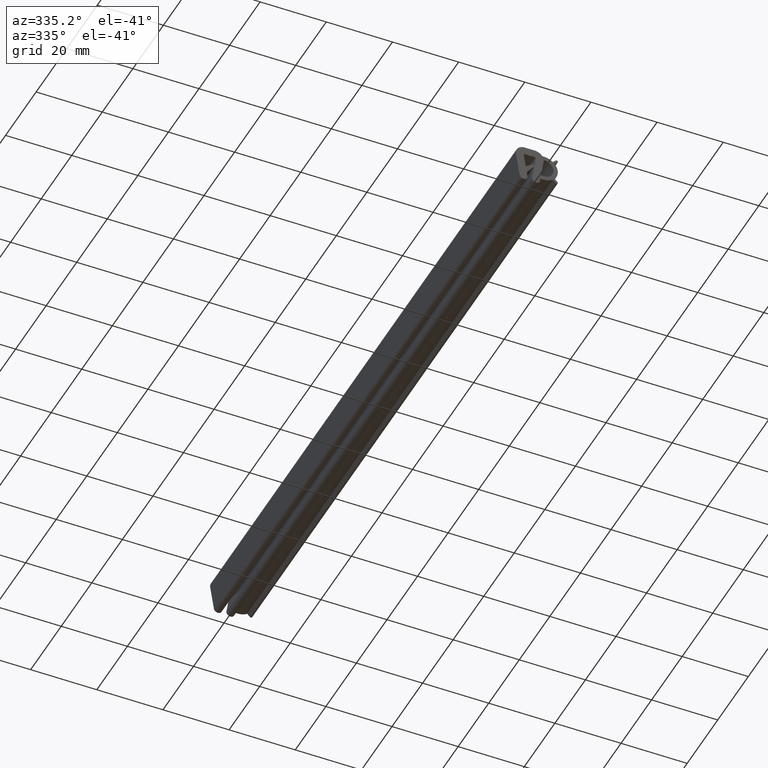
[diagram: clean part render]
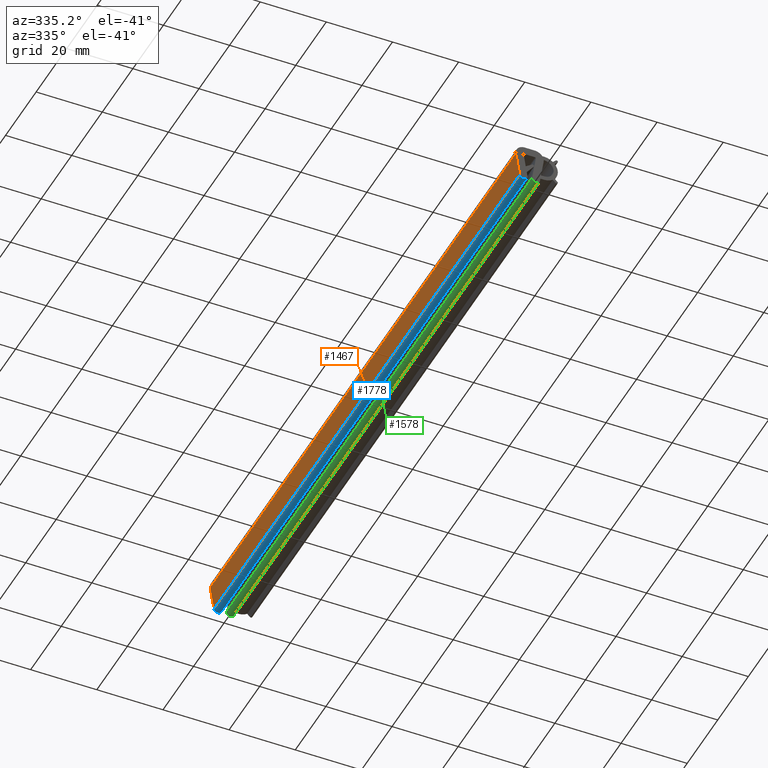
[diagram: same view with three faces highlighted in distinct colors, each labeled with its STEP entity id]
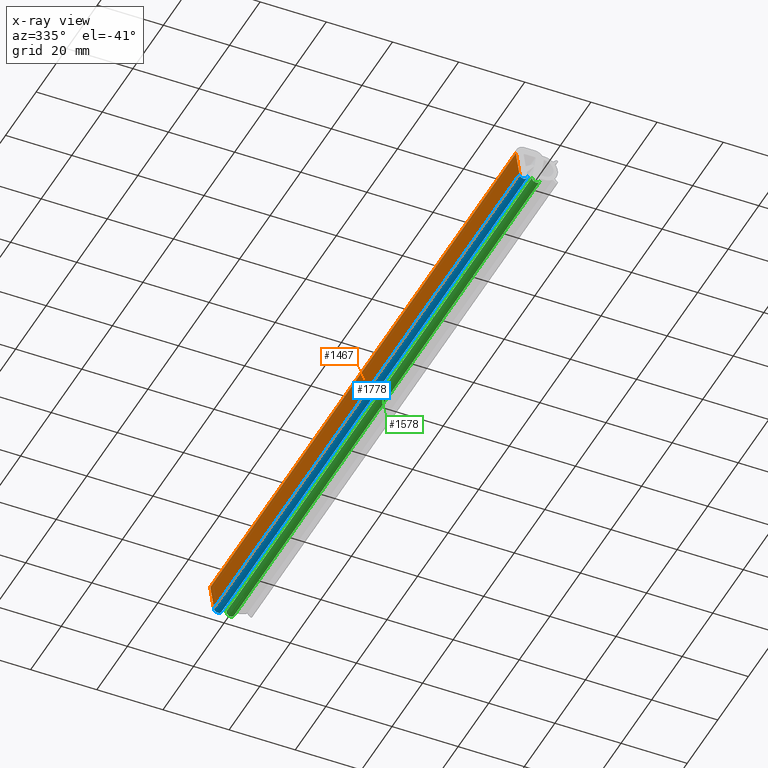
[diagram: x-ray of the same camera — body ghosted, the three highlighted faces saturated]
A machine part, auxiliary view with three faces highlighted in distinct colors.
The next image is the same camera in x-ray (body ghosted, the three faces saturated) — at least one of them is partly hidden behind the body in this view.
Their STEP definitions:

[orange] entity #1467 — the highlighted face is a freeform B-spline surface patch.
#793=CARTESIAN_POINT('',(-3.072418172381395,0.0,-10.481405633440900));
#794=VERTEX_POINT('',#793);
#957=CARTESIAN_POINT('',(-4.200000000004570,0.0,-3.108162675242920));
#958=VERTEX_POINT('',#957);
#974=CARTESIAN_POINT('',(-4.200000000004570,0.0,-3.108162675242920));
#975=CARTESIAN_POINT('',(-3.072418172381395,0.0,-10.481405633440900));
#976=QUASI_UNIFORM_CURVE('',1,(#974,#975),.UNSPECIFIED.,.F.,.U.);
#977=EDGE_CURVE('',#958,#794,#976,.T.);
#1113=CARTESIAN_POINT('',(-3.072418172381395,200.0,-10.481405633440900));
#1114=VERTEX_POINT('',#1113);
#1134=CARTESIAN_POINT('',(-4.200000000004570,200.0,-3.108162675242920));
#1135=VERTEX_POINT('',#1134);
#1136=CARTESIAN_POINT('',(-4.200000000004570,200.0,-3.108162675242920));
#1137=CARTESIAN_POINT('',(-3.072418172381395,200.0,-10.481405633440900));
#1138=QUASI_UNIFORM_CURVE('',1,(#1136,#1137),.UNSPECIFIED.,.F.,.U.);
#1139=EDGE_CURVE('',#1135,#1114,#1138,.T.);
#1448=CARTESIAN_POINT('',(-3.016095515201752,-9.989999612361171,-10.849698758838469));
#1449=CARTESIAN_POINT('',(-4.256322737835061,-9.989999612361171,-2.739869022469907));
#1450=CARTESIAN_POINT('',(-3.016095515201752,209.990004976779200,-10.849698758838469));
#1451=CARTESIAN_POINT('',(-4.256322737835061,209.990004976779200,-2.739869022469907));
#1452=B_SPLINE_SURFACE_WITH_KNOTS('',1,1,((#1448,#1450),(#1449,#1451)),.UNSPECIFIED.,.F.,.F.,.U.,(2,2),(2,2),(0.0,8.204114938044718),(0.0,219.980004589140410),.UNSPECIFIED.);
#1453=ORIENTED_EDGE('',*,*,#977,.F.);
#1454=CARTESIAN_POINT('',(-4.200000000004570,200.0,-3.108162675242920));
#1455=CARTESIAN_POINT('',(-4.200000000004570,0.0,-3.108162675242920));
#1456=QUASI_UNIFORM_CURVE('',1,(#1454,#1455),.UNSPECIFIED.,.F.,.U.);
#1457=EDGE_CURVE('',#1135,#958,#1456,.T.);
#1458=ORIENTED_EDGE('',*,*,#1457,.F.);
#1459=ORIENTED_EDGE('',*,*,#1139,.T.);
#1460=CARTESIAN_POINT('',(-3.072418172381395,200.0,-10.481405633440900));
#1461=CARTESIAN_POINT('',(-3.072418172381395,0.0,-10.481405633440900));
#1462=QUASI_UNIFORM_CURVE('',1,(#1460,#1461),.UNSPECIFIED.,.F.,.U.);
#1463=EDGE_CURVE('',#1114,#794,#1462,.T.);
#1464=ORIENTED_EDGE('',*,*,#1463,.T.);
#1465=EDGE_LOOP('',(#1453,#1458,#1459,#1464));
#1466=FACE_OUTER_BOUND('',#1465,.T.);
#1467=ADVANCED_FACE('',(#1466),#1452,.T.);

[blue] entity #1778 — the highlighted face is a freeform B-spline surface patch.
#793=CARTESIAN_POINT('',(-3.072418172381395,0.0,-10.481405633440900));
#794=VERTEX_POINT('',#793);
#795=CARTESIAN_POINT('',(-0.700000000004398,0.0,-10.118594366558900));
#796=VERTEX_POINT('',#795);
#797=CARTESIAN_POINT('',(-3.072418172381367,0.0,-10.481405633440900));
#798=CARTESIAN_POINT('',(-2.967683581081745,0.0,-11.166263768667113));
#799=CARTESIAN_POINT('',(-2.322211742337571,0.0,-11.417990019559729));
#800=CARTESIAN_POINT('',(-1.676739903593399,0.0,-11.669716270452341));
#801=CARTESIAN_POINT('',(-1.136002656148925,0.0,-11.236584386118700));
#802=CARTESIAN_POINT('',(-0.595265408704449,0.0,-10.803452501785067));
#803=CARTESIAN_POINT('',(-0.700000000004398,0.0,-10.118594366558900));
#811=(BOUNDED_CURVE()B_SPLINE_CURVE(2,(#797,#798,#799,#800,#801,#802,#803),.UNSPECIFIED.,.F.,.U.)B_SPLINE_CURVE_WITH_KNOTS((3,2,2,3),(0.0,0.333333333333333,0.666666666666667,1.0),.UNSPECIFIED.)CURVE()GEOMETRIC_REPRESENTATION_ITEM()RATIONAL_B_SPLINE_CURVE((1.0,0.866025403784422,1.0,0.866025403784422,1.0,0.866025403784422,1.0))REPRESENTATION_ITEM(''));
#812=EDGE_CURVE('',#794,#796,#811,.T.);
#1113=CARTESIAN_POINT('',(-3.072418172381395,200.0,-10.481405633440900));
#1114=VERTEX_POINT('',#1113);
#1115=CARTESIAN_POINT('',(-0.700000000004398,200.0,-10.118594366558900));
#1116=VERTEX_POINT('',#1115);
#1117=CARTESIAN_POINT('',(-3.072418172381367,200.0,-10.481405633440900));
#1118=CARTESIAN_POINT('',(-2.967683581081745,200.000000000000060,-11.166263768667113));
#1119=CARTESIAN_POINT('',(-2.322211742337571,200.0,-11.417990019559729));
#1120=CARTESIAN_POINT('',(-1.676739903593399,200.000000000000060,-11.669716270452341));
#1121=CARTESIAN_POINT('',(-1.136002656148925,200.0,-11.236584386118700));
#1122=CARTESIAN_POINT('',(-0.595265408704449,200.000000000000060,-10.803452501785067));
#1123=CARTESIAN_POINT('',(-0.700000000004209,200.0,-10.118594366558870));
#1131=(BOUNDED_CURVE()B_SPLINE_CURVE(2,(#1117,#1118,#1119,#1120,#1121,#1122,#1123),.UNSPECIFIED.,.F.,.U.)B_SPLINE_CURVE_WITH_KNOTS((3,2,2,3),(0.0,0.333333333333333,0.666666666666667,1.0),.UNSPECIFIED.)CURVE()GEOMETRIC_REPRESENTATION_ITEM()RATIONAL_B_SPLINE_CURVE((1.0,0.866025403784422,1.0,0.866025403784422,1.0,0.866025403784422,1.0))REPRESENTATION_ITEM(''));
#1132=EDGE_CURVE('',#1114,#1116,#1131,.T.);
#1460=CARTESIAN_POINT('',(-3.072418172381395,200.0,-10.481405633440900));
#1461=CARTESIAN_POINT('',(-3.072418172381395,0.0,-10.481405633440900));
#1462=QUASI_UNIFORM_CURVE('',1,(#1460,#1461),.UNSPECIFIED.,.F.,.U.);
#1463=EDGE_CURVE('',#1114,#794,#1462,.T.);
#1744=CARTESIAN_POINT('',(-0.700000000004398,200.0,-10.118594366558900));
#1745=CARTESIAN_POINT('',(-0.700000000004398,0.0,-10.118594366558900));
#1746=QUASI_UNIFORM_CURVE('',1,(#1744,#1745),.UNSPECIFIED.,.F.,.U.);
#1747=EDGE_CURVE('',#1116,#796,#1746,.T.);
#1754=CARTESIAN_POINT('',(-0.705155130121117,205.0,-10.087605195807489));
#1755=CARTESIAN_POINT('',(-0.705155130121117,-5.125000000000000,-10.087605195807489));
#1756=CARTESIAN_POINT('',(-0.481337706750106,205.000000000000030,-11.332176381600252));
#1757=CARTESIAN_POINT('',(-0.481337706750106,-5.124999999999999,-11.332176381600252));
#1758=CARTESIAN_POINT('',(-1.735916949863236,205.0,-11.490551247850330));
#1759=CARTESIAN_POINT('',(-1.735916949863236,-5.125000000000000,-11.490551247850330));
#1760=CARTESIAN_POINT('',(-2.990496192976366,205.000000000000030,-11.648926114100414));
#1761=CARTESIAN_POINT('',(-2.990496192976366,-5.124999999999999,-11.648926114100414));
#1762=CARTESIAN_POINT('',(-3.082994407605626,205.0,-10.387777528167559));
#1763=CARTESIAN_POINT('',(-3.082994407605626,-5.125000000000000,-10.387777528167559));
#1771=(BOUNDED_SURFACE()B_SPLINE_SURFACE(1,2,((#1754,#1756,#1758,#1760,#1762),(#1755,#1757,#1759,#1761,#1763)),.UNSPECIFIED.,.F.,.F.,.U.)B_SPLINE_SURFACE_WITH_KNOTS((2,2),(3,2,3),(0.0,210.125000000000110),(0.0,2.062242748641157,4.124485497282314),.UNSPECIFIED.)GEOMETRIC_REPRESENTATION_ITEM()RATIONAL_B_SPLINE_SURFACE(((1.0,0.688354575693754,1.0,0.688354575693754,1.0),(1.0,0.688354575693754,1.0,0.688354575693754,1.0)))REPRESENTATION_ITEM('')SURFACE());
#1772=ORIENTED_EDGE('',*,*,#812,.F.);
#1773=ORIENTED_EDGE('',*,*,#1463,.F.);
#1774=ORIENTED_EDGE('',*,*,#1132,.T.);
#1775=ORIENTED_EDGE('',*,*,#1747,.T.);
#1776=EDGE_LOOP('',(#1772,#1773,#1774,#1775));
#1777=FACE_OUTER_BOUND('',#1776,.T.);
#1778=ADVANCED_FACE('',(#1777),#1771,.T.);

[green] entity #1578 — the highlighted face is a freeform B-spline surface patch.
#900=CARTESIAN_POINT('',(0.699999999994642,0.0,-10.118594366558900));
#901=VERTEX_POINT('',#900);
#907=CARTESIAN_POINT('',(3.072418172371835,0.0,-10.481405633440920));
#908=VERTEX_POINT('',#907);
#909=CARTESIAN_POINT('',(0.699999999994614,0.0,-10.118594366558890));
#910=CARTESIAN_POINT('',(0.595265408694871,0.0,-10.803452501785101));
#911=CARTESIAN_POINT('',(1.136002656139356,0.0,-11.236584386118739));
#912=CARTESIAN_POINT('',(1.676739903583841,0.0,-11.669716270452374));
#913=CARTESIAN_POINT('',(2.322211742328020,0.0,-11.417990019559760));
#914=CARTESIAN_POINT('',(2.967683581072198,0.0,-11.166263768667143));
#915=CARTESIAN_POINT('',(3.072418172371834,0.0,-10.481405633440920));
#923=(BOUNDED_CURVE()B_SPLINE_CURVE(2,(#909,#910,#911,#912,#913,#914,#915),.UNSPECIFIED.,.F.,.U.)B_SPLINE_CURVE_WITH_KNOTS((3,2,2,3),(0.0,0.333333333333333,0.666666666666667,1.0),.UNSPECIFIED.)CURVE()GEOMETRIC_REPRESENTATION_ITEM()RATIONAL_B_SPLINE_CURVE((1.0,0.866025403784426,1.0,0.866025403784426,1.0,0.866025403784426,1.0))REPRESENTATION_ITEM(''));
#924=EDGE_CURVE('',#901,#908,#923,.T.);
#1182=CARTESIAN_POINT('',(3.072418172371835,200.0,-10.481405633440920));
#1183=VERTEX_POINT('',#1182);
#1189=CARTESIAN_POINT('',(0.699999999994642,200.0,-10.118594366558900));
#1190=VERTEX_POINT('',#1189);
#1191=CARTESIAN_POINT('',(0.699999999994614,200.0,-10.118594366558890));
#1192=CARTESIAN_POINT('',(0.595265408694871,199.999999999999970,-10.803452501785101));
#1193=CARTESIAN_POINT('',(1.136002656139356,200.0,-11.236584386118739));
#1194=CARTESIAN_POINT('',(1.676739903583841,199.999999999999970,-11.669716270452374));
#1195=CARTESIAN_POINT('',(2.322211742328020,200.0,-11.417990019559760));
#1196=CARTESIAN_POINT('',(2.967683581072198,199.999999999999970,-11.166263768667143));
#1197=CARTESIAN_POINT('',(3.072418172371834,200.0,-10.481405633440920));
#1205=(BOUNDED_CURVE()B_SPLINE_CURVE(2,(#1191,#1192,#1193,#1194,#1195,#1196,#1197),.UNSPECIFIED.,.F.,.U.)B_SPLINE_CURVE_WITH_KNOTS((3,2,2,3),(0.0,0.333333333333333,0.666666666666667,1.0),.UNSPECIFIED.)CURVE()GEOMETRIC_REPRESENTATION_ITEM()RATIONAL_B_SPLINE_CURVE((1.0,0.866025403784426,1.0,0.866025403784426,1.0,0.866025403784426,1.0))REPRESENTATION_ITEM(''));
#1206=EDGE_CURVE('',#1190,#1183,#1205,.T.);
#1540=CARTESIAN_POINT('',(3.072418172371835,200.0,-10.481405633440920));
#1541=CARTESIAN_POINT('',(3.072418172371835,0.0,-10.481405633440920));
#1542=QUASI_UNIFORM_CURVE('',1,(#1540,#1541),.UNSPECIFIED.,.F.,.U.);
#1543=EDGE_CURVE('',#1183,#908,#1542,.T.);
#1550=CARTESIAN_POINT('',(3.079201966759488,205.0,-10.429491261847531));
#1551=CARTESIAN_POINT('',(3.079201966759488,-5.125000000000000,-10.429491261847531));
#1552=CARTESIAN_POINT('',(2.941548701405870,205.000000000000090,-11.697680043174771));
#1553=CARTESIAN_POINT('',(2.941548701405870,-5.125000000000000,-11.697680043174771));
#1554=CARTESIAN_POINT('',(1.684128878606973,205.0,-11.482862455954409));
#1555=CARTESIAN_POINT('',(1.684128878606973,-5.125000000000000,-11.482862455954409));
#1556=CARTESIAN_POINT('',(0.426709055808077,205.000000000000090,-11.268044868734046));
#1557=CARTESIAN_POINT('',(0.426709055808077,-5.125000000000000,-11.268044868734046));
#1558=CARTESIAN_POINT('',(0.717889608689794,205.0,-10.026084687339210));
#1559=CARTESIAN_POINT('',(0.717889608689794,-5.125000000000000,-10.026084687339210));
#1567=(BOUNDED_SURFACE()B_SPLINE_SURFACE(1,2,((#1550,#1552,#1554,#1556,#1558),(#1551,#1553,#1555,#1557,#1559)),.UNSPECIFIED.,.F.,.F.,.U.)B_SPLINE_SURFACE_WITH_KNOTS((2,2),(3,2,3),(0.0,210.125000000000000),(0.0,2.074659354803421,4.149318709606842),.UNSPECIFIED.)GEOMETRIC_REPRESENTATION_ITEM()RATIONAL_B_SPLINE_SURFACE(((1.0,0.685182990326359,1.0,0.685182990326359,1.0),(1.0,0.685182990326359,1.0,0.685182990326359,1.0)))REPRESENTATION_ITEM('')SURFACE());
#1568=ORIENTED_EDGE('',*,*,#924,.F.);
#1569=CARTESIAN_POINT('',(0.699999999994642,200.0,-10.118594366558900));
#1570=CARTESIAN_POINT('',(0.699999999994642,0.0,-10.118594366558900));
#1571=QUASI_UNIFORM_CURVE('',1,(#1569,#1570),.UNSPECIFIED.,.F.,.U.);
#1572=EDGE_CURVE('',#1190,#901,#1571,.T.);
#1573=ORIENTED_EDGE('',*,*,#1572,.F.);
#1574=ORIENTED_EDGE('',*,*,#1206,.T.);
#1575=ORIENTED_EDGE('',*,*,#1543,.T.);
#1576=EDGE_LOOP('',(#1568,#1573,#1574,#1575));
#1577=FACE_OUTER_BOUND('',#1576,.T.);
#1578=ADVANCED_FACE('',(#1577),#1567,.T.);